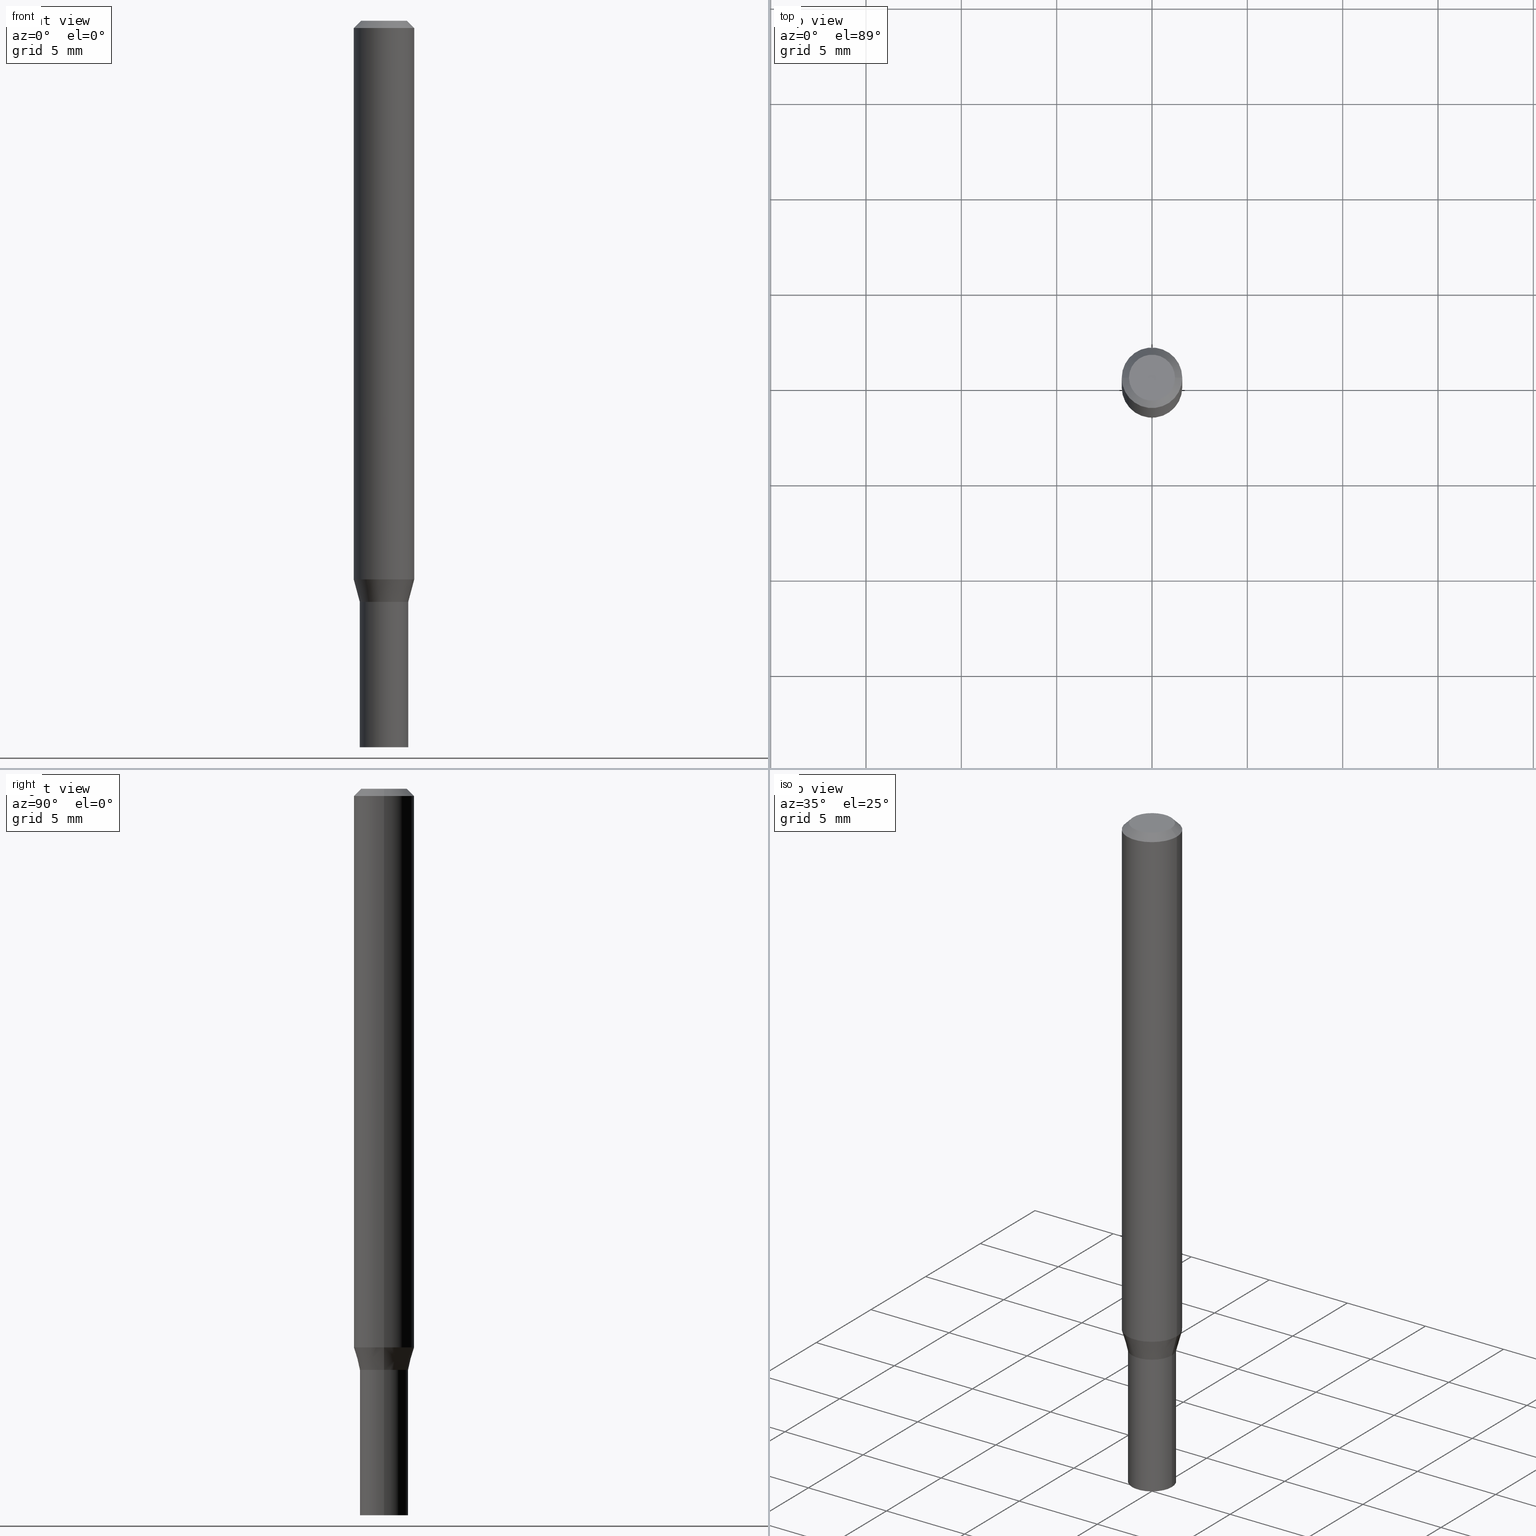
[diagram: canonical four-view strip — front | top / right | iso, engineering-drawing reading convention]
A machine part, canonical four-view strip (front | top / right | iso — engineering-drawing reading convention). The complete STEP part file that produces these views, byte-faithful:
ISO-10303-21;
HEADER;
FILE_DESCRIPTION (( 'STEP AP203' ),
    '1' );
FILE_NAME ('04177.STEP',
    '2024-03-14T17:12:17',
    ( '' ),
    ( '' ),
    'SwSTEP 2.0',
    'SolidWorks 2023',
    '' );
FILE_SCHEMA (( 'CONFIG_CONTROL_DESIGN' ));
ENDSEC;

DATA;
#1 = EDGE_LOOP ( 'NONE', ( #42, #427 ) ) ;
#2 = CIRCLE ( 'NONE', #265, 0.05000000000000000278 ) ;
#3 = CARTESIAN_POINT ( 'NONE',  ( 2.934562567422164701E-29, -4.189777606611775804E-15, -1.200000000000000178 ) ) ;
#4 = EDGE_CURVE ( 'NONE', #289, #35, #378, .T. ) ;
#5 = MECHANICAL_CONTEXT ( 'NONE', #403, 'mechanical' ) ;
#6 = VERTEX_POINT ( 'NONE', #192 ) ;
#7 = DIRECTION ( 'NONE',  ( -2.445468806185136597E-29, 3.491481338843145583E-15, 1.000000000000000000 ) ) ;
#8 = VECTOR ( 'NONE', #232, 39.37007874015748143 ) ;
#9 = DIRECTION ( 'NONE',  ( 1.000000000000000000, -6.982962677686267499E-15, 4.884662768193073002E-29 ) ) ;
#10 = EDGE_CURVE ( 'NONE', #257, #291, #134, .T. ) ;
#11 = DIRECTION ( 'NONE',  ( -2.445468806185136877E-29, 3.491481338843145188E-15, 1.000000000000000000 ) ) ;
#12 = CC_DESIGN_DATE_AND_TIME_ASSIGNMENT ( #227, #363, ( #154 ) ) ;
#13 = DIRECTION ( 'NONE',  ( 1.000000000000000000, -6.982962677686264344E-15, 0.000000000000000000 ) ) ;
#14 = CIRCLE ( 'NONE', #236, 0.06250000000000000000 ) ;
#15 = CARTESIAN_POINT ( 'NONE',  ( 0.04749999999999999362, -4.035134999187576651E-16, 8.618106228654135916E-17 ) ) ;
#16 = PRODUCT_RELATED_PRODUCT_CATEGORY ( 'detail', '', ( #225 ) ) ;
#17 = LINE ( 'NONE', #83, #365 ) ;
#18 = ORIENTED_EDGE ( 'NONE', *, *, #80, .T. ) ;
#19 = CARTESIAN_POINT ( 'NONE',  ( 0.05000000000000000278, -4.538925740496089139E-15, -1.200000000000000178 ) ) ;
#20 = EDGE_LOOP ( 'NONE', ( #23, #228, #280, #193 ) ) ;
#21 = CIRCLE ( 'NONE', #84, 0.05000000000000006523 ) ;
#22 = LINE ( 'NONE', #92, #461 ) ;
#23 = ORIENTED_EDGE ( 'NONE', *, *, #117, .F. ) ;
#24 = DIRECTION ( 'NONE',  ( 1.000000000000000000, -6.982962677686267499E-15, 4.876176775795936353E-29 ) ) ;
#25 = PERSON_AND_ORGANIZATION_ROLE ( 'classification_officer' ) ;
#26 = APPROVAL_PERSON_ORGANIZATION ( #428, #77, #316 ) ;
#27 = DIRECTION ( 'NONE',  ( -1.000000000000000000, 6.982962677686266711E-15, 0.000000000000000000 ) ) ;
#28 = ORIENTED_EDGE ( 'NONE', *, *, #312, .T. ) ;
#29 = CARTESIAN_POINT ( 'NONE',  ( 2.934562567422164701E-29, -4.189777606611775804E-15, -1.200000000000000178 ) ) ;
#30 = AXIS2_PLACEMENT_3D ( 'NONE', #240, #124, #43 ) ;
#31 = ORIENTED_EDGE ( 'NONE', *, *, #361, .F. ) ;
#32 = CYLINDRICAL_SURFACE ( 'NONE', #250, 0.06250000000000000000 ) ;
#33 = PERSON_AND_ORGANIZATION_ROLE ( 'design_owner' ) ;
#34 = DIRECTION ( 'NONE',  ( -2.445468806185136877E-29, 3.491481338843145188E-15, 1.000000000000000000 ) ) ;
#35 = VERTEX_POINT ( 'NONE', #153 ) ;
#36 = AXIS2_PLACEMENT_3D ( 'NONE', #277, #205, #237 ) ;
#37 = EDGE_CURVE ( 'NONE', #423, #104, #189, .T. ) ;
#38 = PERSON_AND_ORGANIZATION_ROLE ( 'creator' ) ;
#39 = ORIENTED_EDGE ( 'NONE', *, *, #93, .T. ) ;
#40 = ORIENTED_EDGE ( 'NONE', *, *, #312, .F. ) ;
#41 = MANIFOLD_SOLID_BREP ( 'Body-Move/Copy2[2]', #60 ) ;
#42 = ORIENTED_EDGE ( 'NONE', *, *, #169, .F. ) ;
#43 = DIRECTION ( 'NONE',  ( 1.000000000000000000, -6.982962677686265922E-15, 4.876176775795935793E-29 ) ) ;
#44 = AXIS2_PLACEMENT_3D ( 'NONE', #270, #408, #306 ) ;
#45 = ORIENTED_EDGE ( 'NONE', *, *, #303, .T. ) ;
#46 = DIRECTION ( 'NONE',  ( -2.445468806185136597E-29, 3.491481338843145583E-15, 1.000000000000000000 ) ) ;
#47 = EDGE_CURVE ( 'NONE', #311, #104, #431, .T. ) ;
#48 = CARTESIAN_POINT ( 'NONE',  ( 2.934562567422164701E-29, -4.189777606611775804E-15, -1.200000000000000178 ) ) ;
#49 = LOCAL_TIME ( 13, 12, 17.00000000000000000, #70 ) ;
#50 = DIRECTION ( 'NONE',  ( -2.445468806185136597E-29, 3.491481338843145583E-15, 1.000000000000000000 ) ) ;
#51 = ORIENTED_EDGE ( 'NONE', *, *, #80, .F. ) ;
#52 = CC_DESIGN_PERSON_AND_ORGANIZATION_ASSIGNMENT ( #394, #358, ( #178 ) ) ;
#53 = VECTOR ( 'NONE', #391, 39.37007874015748143 ) ;
#54 = CYLINDRICAL_SURFACE ( 'NONE', #44, 0.06250000000000000000 ) ;
#55 = DIRECTION ( 'NONE',  ( 1.000000000000000000, -6.982962677686264344E-15, 0.000000000000000000 ) ) ;
#56 = EDGE_LOOP ( 'NONE', ( #180, #59, #175, #326 ) ) ;
#57 = CC_DESIGN_APPROVAL ( #77, ( #269 ) ) ;
#58 = FACE_OUTER_BOUND ( 'NONE', #106, .T. ) ;
#59 = ORIENTED_EDGE ( 'NONE', *, *, #87, .F. ) ;
#60 = CLOSED_SHELL ( 'NONE', ( #381, #144, #353, #231, #113, #186, #128, #432, #268, #344, #271, #163 ) ) ;
#61 = CIRCLE ( 'NONE', #273, 0.04950000000000000233 ) ;
#62 = DIRECTION ( 'NONE',  ( -2.445468806185136597E-29, 3.491481338843145583E-15, 1.000000000000000000 ) ) ;
#63 = CC_DESIGN_PERSON_AND_ORGANIZATION_ASSIGNMENT ( #256, #38, ( #178 ) ) ;
#64 = EDGE_LOOP ( 'NONE', ( #464, #331 ) ) ;
#65 = DIRECTION ( 'NONE',  ( -2.438088387897960049E-29, 3.491481338843145188E-15, 1.000000000000000000 ) ) ;
#66 = ORIENTED_EDGE ( 'NONE', *, *, #303, .F. ) ;
#67 = COORDINATED_UNIVERSAL_TIME_OFFSET ( 5, 0, .BEHIND. ) ;
#68 = CARTESIAN_POINT ( 'NONE',  ( 0.000000000000000000, 0.000000000000000000, 0.000000000000000000 ) ) ;
#69 = ORIENTED_EDGE ( 'NONE', *, *, #234, .F. ) ;
#70 = COORDINATED_UNIVERSAL_TIME_OFFSET ( 5, 0, .BEHIND. ) ;
#71 = CIRCLE ( 'NONE', #213, 0.04749999999999999362 ) ;
#72 = DIRECTION ( 'NONE',  ( -2.445468806185136597E-29, 3.491481338843145583E-15, 1.000000000000000000 ) ) ;
#73 = CALENDAR_DATE ( 2024, 14, 3 ) ;
#74 = CARTESIAN_POINT ( 'NONE',  ( 2.820479894509568805E-29, -4.026897784733760650E-15, -1.153349364905389640 ) ) ;
#75 = COORDINATED_UNIVERSAL_TIME_OFFSET ( 5, 0, .BEHIND. ) ;
#76 = CARTESIAN_POINT ( 'NONE',  ( -2.107530995056288845E-45, 3.008995707351289501E-31, 8.618106228653878303E-17 ) ) ;
#77 = APPROVAL ( #176, 'UNSPECIFIED' ) ;
#78 = AXIS2_PLACEMENT_3D ( 'NONE', #399, #368, #442 ) ;
#79 = DIRECTION ( 'NONE',  ( 1.000000000000000000, -6.982962677686265133E-15, 0.000000000000000000 ) ) ;
#80 = EDGE_CURVE ( 'NONE', #6, #397, #407, .T. ) ;
#81 = DIRECTION ( 'NONE',  ( -2.445468806185136597E-29, 3.491481338843145583E-15, 1.000000000000000000 ) ) ;
#82 = LOCAL_TIME ( 13, 12, 17.00000000000000000, #293 ) ;
#83 = CARTESIAN_POINT ( 'NONE',  ( -0.06250000000000000000, 3.840629472727444916E-16, -0.01499999999999999944 ) ) ;
#84 = AXIS2_PLACEMENT_3D ( 'NONE', #174, #147, #343 ) ;
#85 = CYLINDRICAL_SURFACE ( 'NONE', #182, 0.05000000000000006523 ) ;
#86 = DIRECTION ( 'NONE',  ( 2.438088387897960049E-29, -3.491481338843145188E-15, -1.000000000000000000 ) ) ;
#87 = EDGE_CURVE ( 'NONE', #6, #259, #181, .T. ) ;
#88 = PLANE ( 'NONE',  #30 ) ;
#89 = EDGE_LOOP ( 'NONE', ( #349, #210, #18, #249 ) ) ;
#90 = AXIS2_PLACEMENT_3D ( 'NONE', #307, #449, #55 ) ;
#91 = AXIS2_PLACEMENT_3D ( 'NONE', #354, #103, #251 ) ;
#92 = CARTESIAN_POINT ( 'NONE',  ( 0.06250000000000000000, -4.364351673553916694E-16, 3.047610484872459871E-30 ) ) ;
#93 = EDGE_CURVE ( 'NONE', #397, #420, #356, .T. ) ;
#94 = EDGE_CURVE ( 'NONE', #420, #216, #159, .T. ) ;
#95 = CARTESIAN_POINT ( 'NONE',  ( 0.05000000000000006523, -4.537179999826667636E-15, -1.199500000000000233 ) ) ;
#96 = ORIENTED_EDGE ( 'NONE', *, *, #150, .T. ) ;
#97 = ORIENTED_EDGE ( 'NONE', *, *, #276, .F. ) ;
#98 = DESIGN_CONTEXT ( 'detailed design', #204, 'design' ) ;
#99 = EDGE_CURVE ( 'NONE', #425, #423, #61, .T. ) ;
#100 = CARTESIAN_POINT ( 'NONE',  ( 3.668203209277705088E-31, -5.237222008264718399E-17, -0.01499999999999999944 ) ) ;
#101 = ORIENTED_EDGE ( 'NONE', *, *, #93, .F. ) ;
#102 = VECTOR ( 'NONE', #11, 39.37007874015748143 ) ;
#103 = DIRECTION ( 'NONE',  ( 2.445468806185136597E-29, -3.491481338843145583E-15, -1.000000000000000000 ) ) ;
#104 = VERTEX_POINT ( 'NONE', #118 ) ;
#105 = FACE_OUTER_BOUND ( 'NONE', #453, .T. ) ;
#106 = EDGE_LOOP ( 'NONE', ( #444, #285, #45, #31 ) ) ;
#107 = CC_DESIGN_PERSON_AND_ORGANIZATION_ASSIGNMENT ( #459, #25, ( #269 ) ) ;
#108 = CC_DESIGN_APPROVAL ( #283, ( #178 ) ) ;
#109 = CALENDAR_DATE ( 2024, 14, 3 ) ;
#110 = ORIENTED_EDGE ( 'NONE', *, *, #99, .F. ) ;
#111 = VECTOR ( 'NONE', #115, 39.37007874015748854 ) ;
#112 = DIRECTION ( 'NONE',  ( 1.000000000000000000, -6.982962677686266711E-15, 4.876176775795935793E-29 ) ) ;
#113 = ADVANCED_FACE ( 'NONE', ( #120 ), #278, .T. ) ;
#114 = COORDINATED_UNIVERSAL_TIME_OFFSET ( 5, 0, .BEHIND. ) ;
#115 = DIRECTION ( 'NONE',  ( 0.2588190451025212391, 1.565188264969622362E-15, 0.9659258262890679791 ) ) ;
#116 = PERSON_AND_ORGANIZATION ( #206, #445 ) ;
#117 = EDGE_CURVE ( 'NONE', #289, #455, #434, .T. ) ;
#118 = CARTESIAN_POINT ( 'NONE',  ( -0.05000000000000006523, -3.832760498062303103E-15, -1.199500000000000233 ) ) ;
#119 =( GEOMETRIC_REPRESENTATION_CONTEXT ( 3 ) GLOBAL_UNCERTAINTY_ASSIGNED_CONTEXT ( ( #260 ) ) GLOBAL_UNIT_ASSIGNED_CONTEXT ( ( #429, #298, #261 ) ) REPRESENTATION_CONTEXT ( 'NONE', 'WORKASPACE' ) );
#120 = FACE_OUTER_BOUND ( 'NONE', #342, .T. ) ;
#121 = AXIS2_PLACEMENT_3D ( 'NONE', #100, #384, #27 ) ;
#122 = ORIENTED_EDGE ( 'NONE', *, *, #276, .T. ) ;
#123 = EDGE_CURVE ( 'NONE', #253, #216, #327, .T. ) ;
#124 = DIRECTION ( 'NONE',  ( -2.438088387897960049E-29, 3.491481338843145188E-15, 1.000000000000000000 ) ) ;
#125 = ORIENTED_EDGE ( 'NONE', *, *, #220, .F. ) ;
#126 = ADVANCED_BREP_SHAPE_REPRESENTATION ( '04177', ( #207, #41, #217 ), #119 ) ;
#127 = LINE ( 'NONE', #238, #422 ) ;
#128 = ADVANCED_FACE ( 'NONE', ( #267 ), #32, .T. ) ;
#129 = PLANE ( 'NONE',  #387 ) ;
#130 = DIRECTION ( 'NONE',  ( 1.000000000000000000, -6.982962677686266711E-15, 4.876176775795935232E-29 ) ) ;
#131 = LOCAL_TIME ( 13, 12, 17.00000000000000000, #67 ) ;
#132 = FACE_OUTER_BOUND ( 'NONE', #184, .T. ) ;
#133 = EDGE_CURVE ( 'NONE', #420, #397, #440, .T. ) ;
#134 = CIRCLE ( 'NONE', #196, 0.04749999999999999362 ) ;
#135 = VECTOR ( 'NONE', #305, 39.37007874015748854 ) ;
#136 = CARTESIAN_POINT ( 'NONE',  ( 2.934562567422164701E-29, -4.189777606611775804E-15, -1.200000000000000178 ) ) ;
#137 = ORIENTED_EDGE ( 'NONE', *, *, #10, .F. ) ;
#138 = CYLINDRICAL_SURFACE ( 'NONE', #301, 0.05000000000000000278 ) ;
#139 = ORIENTED_EDGE ( 'NONE', *, *, #37, .F. ) ;
#140 = CARTESIAN_POINT ( 'NONE',  ( -0.04749999999999999362, 3.578768372314211985E-16, 8.618106228653636715E-17 ) ) ;
#141 = ORIENTED_EDGE ( 'NONE', *, *, #94, .F. ) ;
#142 = APPROVAL_DATE_TIME ( #212, #77 ) ;
#143 = DIRECTION ( 'NONE',  ( 2.438088387897960049E-29, -3.491481338843145188E-15, -1.000000000000000000 ) ) ;
#144 = ADVANCED_FACE ( 'NONE', ( #272 ), #451, .T. ) ;
#145 = ORIENTED_EDGE ( 'NONE', *, *, #169, .T. ) ;
#146 = SHAPE_DEFINITION_REPRESENTATION ( #199, #126 ) ;
#147 = DIRECTION ( 'NONE',  ( -2.445468806185136597E-29, 3.491481338843145583E-15, 1.000000000000000000 ) ) ;
#148 = ORIENTED_EDGE ( 'NONE', *, *, #150, .F. ) ;
#149 = DIRECTION ( 'NONE',  ( -2.445468806185136597E-29, 3.491481338843145583E-15, 1.000000000000000000 ) ) ;
#150 = EDGE_CURVE ( 'NONE', #423, #425, #414, .T. ) ;
#151 = APPROVAL_ROLE ( '' ) ;
#152 = CIRCLE ( 'NONE', #165, 0.05000000000000000278 ) ;
#153 = CARTESIAN_POINT ( 'NONE',  ( 0.05000000000000000278, -5.586370142149032301E-15, -1.500000000000000222 ) ) ;
#154 = PRODUCT_DEFINITION ( 'UNKNOWN', '', #178, #98 ) ;
#155 = CARTESIAN_POINT ( 'NONE',  ( 0.000000000000000000, 0.000000000000000000, 0.000000000000000000 ) ) ;
#156 = CARTESIAN_POINT ( 'NONE',  ( 2.934562567422164701E-29, -4.189777606611775804E-15, -1.200000000000000178 ) ) ;
#157 = DATE_AND_TIME ( #433, #49 ) ;
#158 = CARTESIAN_POINT ( 'NONE',  ( -0.04950000000000000233, -3.838058952410526294E-15, -1.200000000000000178 ) ) ;
#159 = LINE ( 'NONE', #299, #160 ) ;
#160 = VECTOR ( 'NONE', #34, 39.37007874015748143 ) ;
#161 = DIRECTION ( 'NONE',  ( -2.445468806185136597E-29, 3.491481338843145583E-15, 1.000000000000000000 ) ) ;
#162 = CARTESIAN_POINT ( 'NONE',  ( -2.107530995056288845E-45, 3.008995707351289501E-31, 8.618106228653878303E-17 ) ) ;
#163 = ADVANCED_FACE ( 'NONE', ( #197 ), #85, .F. ) ;
#164 = LINE ( 'NONE', #371, #135 ) ;
#165 = AXIS2_PLACEMENT_3D ( 'NONE', #411, #81, #336 ) ;
#166 = EDGE_CURVE ( 'NONE', #291, #257, #71, .T. ) ;
#167 = FACE_OUTER_BOUND ( 'NONE', #328, .T. ) ;
#168 = DIRECTION ( 'NONE',  ( -2.445468806185136877E-29, 3.491481338843145188E-15, 1.000000000000000000 ) ) ;
#169 = EDGE_CURVE ( 'NONE', #35, #289, #152, .T. ) ;
#170 = DIRECTION ( 'NONE',  ( 1.000000000000000000, -6.982962677686266711E-15, 0.000000000000000000 ) ) ;
#171 = CC_DESIGN_PERSON_AND_ORGANIZATION_ASSIGNMENT ( #435, #398, ( #154 ) ) ;
#172 = EDGE_LOOP ( 'NONE', ( #110, #148 ) ) ;
#173 = AXIS2_PLACEMENT_3D ( 'NONE', #48, #46, #202 ) ;
#174 = CARTESIAN_POINT ( 'NONE',  ( 2.933339833019071899E-29, -4.188031865942353511E-15, -1.199500000000000233 ) ) ;
#175 = ORIENTED_EDGE ( 'NONE', *, *, #361, .T. ) ;
#176 = APPROVAL_STATUS ( 'not_yet_approved' ) ;
#177 = CARTESIAN_POINT ( 'NONE',  ( 0.06250000000000000000, -4.463332952089153109E-15, -1.153349364905389640 ) ) ;
#178 = PRODUCT_DEFINITION_FORMATION_WITH_SPECIFIED_SOURCE ( 'ANY', '', #225, .NOT_KNOWN. ) ;
#179 = LINE ( 'NONE', #463, #53 ) ;
#180 = ORIENTED_EDGE ( 'NONE', *, *, #248, .F. ) ;
#181 = CIRCLE ( 'NONE', #287, 0.05000000000000006523 ) ;
#182 = AXIS2_PLACEMENT_3D ( 'NONE', #235, #50, #130 ) ;
#183 = CARTESIAN_POINT ( 'NONE',  ( 0.04950000000000000233, -4.535434259157245343E-15, -1.200000000000000178 ) ) ;
#184 = EDGE_LOOP ( 'NONE', ( #39, #458, #246, #40 ) ) ;
#185 = PERSON_AND_ORGANIZATION ( #206, #445 ) ;
#186 = ADVANCED_FACE ( 'NONE', ( #374 ), #404, .T. ) ;
#187 = CARTESIAN_POINT ( 'NONE',  ( 0.000000000000000000, 0.000000000000000000, 0.000000000000000000 ) ) ;
#188 = LENGTH_MEASURE_WITH_UNIT ( LENGTH_MEASURE( 0.02539999999999999897 ), #258 );
#189 = LINE ( 'NONE', #158, #410 ) ;
#190 = EDGE_CURVE ( 'NONE', #259, #420, #164, .T. ) ;
#191 = CONICAL_SURFACE ( 'NONE', #90, 0.04950000000000000233, 0.7853981633974739252 ) ;
#192 = CARTESIAN_POINT ( 'NONE',  ( 0.05000000000000006523, -4.538925740496089139E-15, -1.200000000000000178 ) ) ;
#193 = ORIENTED_EDGE ( 'NONE', *, *, #332, .F. ) ;
#194 = ADVANCED_FACE ( 'NONE', ( #373 ), #88, .F. ) ;
#195 = DIRECTION ( 'NONE',  ( -2.445468806185136597E-29, 3.491481338843145583E-15, 1.000000000000000000 ) ) ;
#196 = AXIS2_PLACEMENT_3D ( 'NONE', #76, #7, #226 ) ;
#197 = FACE_OUTER_BOUND ( 'NONE', #56, .T. ) ;
#198 = AXIS2_PLACEMENT_3D ( 'NONE', #29, #452, #419 ) ;
#199 = PRODUCT_DEFINITION_SHAPE ( 'NONE', 'NONE',  #154 ) ;
#200 = DIRECTION ( 'NONE',  ( -0.7071067811865454633, 2.468850131082235761E-15, -0.7071067811865493491 ) ) ;
#201 = CARTESIAN_POINT ( 'NONE',  ( 0.06250000000000000000, -4.888073874380388472E-16, -0.01499999999999999944 ) ) ;
#202 = DIRECTION ( 'NONE',  ( 1.000000000000000000, -6.982962677686274599E-15, 0.000000000000000000 ) ) ;
#203 = AXIS2_PLACEMENT_3D ( 'NONE', #296, #195, #297 ) ;
#204 = APPLICATION_CONTEXT ( 'configuration controlled 3d designs of mechanical parts and assemblies' ) ;
#205 = DIRECTION ( 'NONE',  ( -2.445468806185136597E-29, 3.491481338843145583E-15, 1.000000000000000000 ) ) ;
#206 = PERSON ( 'UNSPECIFIED', 'UNSPECIFIED', 'UNSPECIFIED', ('UNSPECIFIED'), ('UNSPECIFIED'), ('UNSPECIFIED') ) ;
#207 = MANIFOLD_SOLID_BREP ( 'Body-Move/Copy2[1]', #319 ) ;
#208 = EDGE_CURVE ( 'NONE', #388, #455, #334, .T. ) ;
#209 = CYLINDRICAL_SURFACE ( 'NONE', #416, 0.05000000000000006523 ) ;
#210 = ORIENTED_EDGE ( 'NONE', *, *, #329, .T. ) ;
#211 = DIRECTION ( 'NONE',  ( -2.445468806185136597E-29, 3.491481338843145583E-15, 1.000000000000000000 ) ) ;
#212 = DATE_AND_TIME ( #456, #131 ) ;
#213 = AXIS2_PLACEMENT_3D ( 'NONE', #162, #413, #9 ) ;
#214 = CARTESIAN_POINT ( 'NONE',  ( 0.000000000000000000, 0.000000000000000000, 0.000000000000000000 ) ) ;
#215 = PLANE ( 'NONE',  #339 ) ;
#216 = VERTEX_POINT ( 'NONE', #337 ) ;
#217 = AXIS2_PLACEMENT_3D ( 'NONE', #155, #426, #330 ) ;
#218 = CARTESIAN_POINT ( 'NONE',  ( 3.491481338843426713E-16, 0.04999999999999581168, -1.200000000000000400 ) ) ;
#219 = ORIENTED_EDGE ( 'NONE', *, *, #99, .T. ) ;
#220 = EDGE_CURVE ( 'NONE', #35, #388, #379, .T. ) ;
#221 = AXIS2_PLACEMENT_3D ( 'NONE', #214, #211, #309 ) ;
#222 = APPLICATION_PROTOCOL_DEFINITION ( 'international standard', 'config_control_design', 1994, #204 ) ;
#223 = DIRECTION ( 'NONE',  ( -0.7071067811865656694, 7.493145998870420424E-15, 0.7071067811865294761 ) ) ;
#224 = PERSON_AND_ORGANIZATION ( #206, #445 ) ;
#225 = PRODUCT ( '04177', '04177', '', ( #5 ) ) ;
#226 = DIRECTION ( 'NONE',  ( 1.000000000000000000, -6.982962677686267499E-15, 4.884662768193073002E-29 ) ) ;
#227 = DATE_AND_TIME ( #73, #385 ) ;
#228 = ORIENTED_EDGE ( 'NONE', *, *, #4, .T. ) ;
#229 = DATE_AND_TIME ( #109, #239 ) ;
#230 = DIRECTION ( 'NONE',  ( 1.000000000000000000, -6.982962677686275388E-15, 0.000000000000000000 ) ) ;
#231 = ADVANCED_FACE ( 'NONE', ( #132 ), #54, .T. ) ;
#232 = DIRECTION ( 'NONE',  ( -2.445468806185136877E-29, 3.491481338843145188E-15, 1.000000000000000000 ) ) ;
#233 = DIRECTION ( 'NONE',  ( -2.445468806185136597E-29, 3.491481338843145583E-15, 1.000000000000000000 ) ) ;
#234 = EDGE_CURVE ( 'NONE', #291, #216, #17, .T. ) ;
#235 = CARTESIAN_POINT ( 'NONE',  ( 0.000000000000000000, 0.000000000000000000, 0.000000000000000000 ) ) ;
#236 = AXIS2_PLACEMENT_3D ( 'NONE', #281, #417, #170 ) ;
#237 = DIRECTION ( 'NONE',  ( 1.000000000000000000, -6.982962677686264344E-15, 0.000000000000000000 ) ) ;
#238 = CARTESIAN_POINT ( 'NONE',  ( 0.06250000000000000000, -4.811533449433679005E-16, -0.01499999999999999944 ) ) ;
#239 = LOCAL_TIME ( 13, 12, 17.00000000000000000, #75 ) ;
#240 = CARTESIAN_POINT ( 'NONE',  ( 3.576687321579069994E-29, -5.368277968210015545E-15, -1.500000000000000222 ) ) ;
#241 = AXIS2_PLACEMENT_3D ( 'NONE', #405, #149, #264 ) ;
#242 = ORIENTED_EDGE ( 'NONE', *, *, #234, .T. ) ;
#243 = CONICAL_SURFACE ( 'NONE', #91, 0.06250000000000000000, 0.7853981633974456145 ) ;
#244 = DIRECTION ( 'NONE',  ( -2.445468806185136597E-29, 3.491481338843145583E-15, 1.000000000000000000 ) ) ;
#245 = DIRECTION ( 'NONE',  ( -2.445468806185136877E-29, 3.491481338843145188E-15, 1.000000000000000000 ) ) ;
#246 = ORIENTED_EDGE ( 'NONE', *, *, #123, .F. ) ;
#247 = DIRECTION ( 'NONE',  ( 1.000000000000000000, -6.982962677686274599E-15, 0.000000000000000000 ) ) ;
#248 = EDGE_CURVE ( 'NONE', #259, #104, #446, .T. ) ;
#249 = ORIENTED_EDGE ( 'NONE', *, *, #133, .F. ) ;
#250 = AXIS2_PLACEMENT_3D ( 'NONE', #187, #466, #112 ) ;
#251 = DIRECTION ( 'NONE',  ( -1.000000000000000000, 6.982962677686266711E-15, 0.000000000000000000 ) ) ;
#252 = EDGE_CURVE ( 'NONE', #257, #253, #127, .T. ) ;
#253 = VERTEX_POINT ( 'NONE', #201 ) ;
#254 = DIRECTION ( 'NONE',  ( 1.000000000000000000, -6.982962677686265922E-15, 4.876176775795935793E-29 ) ) ;
#255 = ORIENTED_EDGE ( 'NONE', *, *, #87, .T. ) ;
#256 = PERSON_AND_ORGANIZATION ( #206, #445 ) ;
#257 = VERTEX_POINT ( 'NONE', #15 ) ;
#258 =( LENGTH_UNIT ( ) NAMED_UNIT ( * ) SI_UNIT ( $, .METRE. ) );
#259 = VERTEX_POINT ( 'NONE', #448 ) ;
#260 = UNCERTAINTY_MEASURE_WITH_UNIT (LENGTH_MEASURE( 1.000000000000000082E-05 ), #429, 'distance_accuracy_value', 'NONE');
#261 =( NAMED_UNIT ( * ) SI_UNIT ( $, .STERADIAN. ) SOLID_ANGLE_UNIT ( ) );
#262 = CARTESIAN_POINT ( 'NONE',  ( -0.05000000000000000278, 3.552713678800501127E-16, -2.459467545127453311E-30 ) ) ;
#263 = DIMENSIONAL_EXPONENTS ( 1.000000000000000000, 0.000000000000000000, 0.000000000000000000, 0.000000000000000000, 0.000000000000000000, 0.000000000000000000, 0.000000000000000000 ) ;
#264 = DIRECTION ( 'NONE',  ( 1.000000000000000000, -6.982962677686274599E-15, 0.000000000000000000 ) ) ;
#265 = AXIS2_PLACEMENT_3D ( 'NONE', #136, #244, #247 ) ;
#266 = ORIENTED_EDGE ( 'NONE', *, *, #123, .T. ) ;
#267 = FACE_OUTER_BOUND ( 'NONE', #323, .T. ) ;
#268 = ADVANCED_FACE ( 'NONE', ( #274 ), #129, .F. ) ;
#269 = SECURITY_CLASSIFICATION ( '', '', #350 ) ;
#270 = CARTESIAN_POINT ( 'NONE',  ( 0.000000000000000000, 0.000000000000000000, 0.000000000000000000 ) ) ;
#271 = ADVANCED_FACE ( 'NONE', ( #167 ), #191, .T. ) ;
#272 = FACE_OUTER_BOUND ( 'NONE', #355, .T. ) ;
#273 = AXIS2_PLACEMENT_3D ( 'NONE', #156, #302, #364 ) ;
#274 = FACE_OUTER_BOUND ( 'NONE', #64, .T. ) ;
#275 = CARTESIAN_POINT ( 'NONE',  ( 2.934562567422164701E-29, -4.189777606611775804E-15, -1.200000000000000178 ) ) ;
#276 = EDGE_CURVE ( 'NONE', #216, #253, #14, .T. ) ;
#277 = CARTESIAN_POINT ( 'NONE',  ( 2.934562567422164701E-29, -4.189777606611775804E-15, -1.200000000000000178 ) ) ;
#278 = CONICAL_SURFACE ( 'NONE', #310, 0.05000000000000006523, 0.2617993877991499629 ) ;
#279 = DIRECTION ( 'NONE',  ( -2.445468806185136597E-29, 3.491481338843145583E-15, 1.000000000000000000 ) ) ;
#280 = ORIENTED_EDGE ( 'NONE', *, *, #220, .T. ) ;
#281 = CARTESIAN_POINT ( 'NONE',  ( 3.668203209277705088E-31, -5.237222008264718399E-17, -0.01499999999999999944 ) ) ;
#282 = ORIENTED_EDGE ( 'NONE', *, *, #166, .F. ) ;
#283 = APPROVAL ( #401, 'UNSPECIFIED' ) ;
#284 = CARTESIAN_POINT ( 'NONE',  ( -0.04950000000000000233, -3.835409725236414304E-15, -1.200000000000000178 ) ) ;
#285 = ORIENTED_EDGE ( 'NONE', *, *, #248, .T. ) ;
#286 = DATE_AND_TIME ( #393, #82 ) ;
#287 = AXIS2_PLACEMENT_3D ( 'NONE', #3, #438, #79 ) ;
#288 = DIRECTION ( 'NONE',  ( -1.000000000000000000, 6.982962677686265922E-15, -4.876176775795935793E-29 ) ) ;
#289 = VERTEX_POINT ( 'NONE', #386 ) ;
#290 = APPROVAL_ROLE ( '' ) ;
#291 = VERTEX_POINT ( 'NONE', #140 ) ;
#292 = EDGE_CURVE ( 'NONE', #425, #311, #348, .T. ) ;
#293 = COORDINATED_UNIVERSAL_TIME_OFFSET ( 5, 0, .BEHIND. ) ;
#294 = CARTESIAN_POINT ( 'NONE',  ( 2.934562567422164701E-29, -4.189777606611775804E-15, -1.200000000000000178 ) ) ;
#295 = APPROVAL_DATE_TIME ( #157, #370 ) ;
#296 = CARTESIAN_POINT ( 'NONE',  ( 2.820479894509568805E-29, -4.026897784733760650E-15, -1.153349364905389640 ) ) ;
#297 = DIRECTION ( 'NONE',  ( 1.000000000000000000, -6.982962677686270655E-15, 0.000000000000000000 ) ) ;
#298 =( NAMED_UNIT ( * ) PLANE_ANGLE_UNIT ( ) SI_UNIT ( $, .RADIAN. ) );
#299 = CARTESIAN_POINT ( 'NONE',  ( -0.06250000000000000000, 4.440892098500626162E-16, -3.074334431409316114E-30 ) ) ;
#300 = VECTOR ( 'NONE', #168, 39.37007874015748143 ) ;
#301 = AXIS2_PLACEMENT_3D ( 'NONE', #321, #279, #24 ) ;
#302 = DIRECTION ( 'NONE',  ( -2.445468806185136597E-29, 3.491481338843145583E-15, 1.000000000000000000 ) ) ;
#303 = EDGE_CURVE ( 'NONE', #104, #311, #21, .T. ) ;
#304 = DIRECTION ( 'NONE',  ( -2.445468806185136597E-29, 3.491481338843145583E-15, 1.000000000000000000 ) ) ;
#305 = DIRECTION ( 'NONE',  ( -0.2588190451025212391, 5.211531920934549464E-15, 0.9659258262890679791 ) ) ;
#306 = DIRECTION ( 'NONE',  ( 1.000000000000000000, -6.982962677686266711E-15, 4.876176775795935793E-29 ) ) ;
#307 = CARTESIAN_POINT ( 'NONE',  ( 2.934562567422164701E-29, -4.189777606611775804E-15, -1.200000000000000178 ) ) ;
#308 = DIRECTION ( 'NONE',  ( 0.7071067811865454633, -7.319954787623246579E-15, -0.7071067811865493491 ) ) ;
#309 = DIRECTION ( 'NONE',  ( 1.000000000000000000, -6.982962677686267499E-15, 4.876176775795936353E-29 ) ) ;
#310 = AXIS2_PLACEMENT_3D ( 'NONE', #294, #436, #402 ) ;
#311 = VERTEX_POINT ( 'NONE', #95 ) ;
#312 = EDGE_CURVE ( 'NONE', #397, #253, #22, .T. ) ;
#313 = FACE_OUTER_BOUND ( 'NONE', #362, .T. ) ;
#314 = ORIENTED_EDGE ( 'NONE', *, *, #332, .T. ) ;
#315 = CARTESIAN_POINT ( 'NONE',  ( -0.06250000000000000000, -3.582808574883698823E-15, -1.153349364905389640 ) ) ;
#316 = APPROVAL_ROLE ( '' ) ;
#317 = FACE_OUTER_BOUND ( 'NONE', #390, .T. ) ;
#318 = ORIENTED_EDGE ( 'NONE', *, *, #37, .T. ) ;
#319 = CLOSED_SHELL ( 'NONE', ( #382, #194, #396, #439 ) ) ;
#320 = CONICAL_SURFACE ( 'NONE', #121, 0.06250000000000000000, 0.7853981633974456145 ) ;
#321 = CARTESIAN_POINT ( 'NONE',  ( 0.000000000000000000, 0.000000000000000000, 0.000000000000000000 ) ) ;
#322 = CC_DESIGN_DATE_AND_TIME_ASSIGNMENT ( #286, #347, ( #269 ) ) ;
#323 = EDGE_LOOP ( 'NONE', ( #141, #333, #28, #97 ) ) ;
#324 = CARTESIAN_POINT ( 'NONE',  ( 2.933339833019071899E-29, -4.188031865942353511E-15, -1.199500000000000233 ) ) ;
#325 = CC_DESIGN_SECURITY_CLASSIFICATION ( #269, ( #178 ) ) ;
#326 = ORIENTED_EDGE ( 'NONE', *, *, #47, .T. ) ;
#327 = CIRCLE ( 'NONE', #78, 0.06250000000000000000 ) ;
#328 = EDGE_LOOP ( 'NONE', ( #139, #96, #377, #66 ) ) ;
#329 = EDGE_CURVE ( 'NONE', #259, #6, #345, .T. ) ;
#330 = DIRECTION ( 'NONE',  ( 1.000000000000000000, 0.000000000000000000, 0.000000000000000000 ) ) ;
#331 = ORIENTED_EDGE ( 'NONE', *, *, #10, .T. ) ;
#332 = EDGE_CURVE ( 'NONE', #455, #388, #2, .T. ) ;
#333 = ORIENTED_EDGE ( 'NONE', *, *, #133, .T. ) ;
#334 = CIRCLE ( 'NONE', #173, 0.05000000000000000278 ) ;
#335 = DIRECTION ( 'NONE',  ( 1.000000000000000000, -6.982962677686270655E-15, 0.000000000000000000 ) ) ;
#336 = DIRECTION ( 'NONE',  ( 1.000000000000000000, -6.982962677686274599E-15, 0.000000000000000000 ) ) ;
#337 = CARTESIAN_POINT ( 'NONE',  ( -0.06250000000000000000, -1.595545792558141446E-15, -0.01499999999999999944 ) ) ;
#338 = CARTESIAN_POINT ( 'NONE',  ( 0.05000000000000000278, -3.491481338843133848E-16, 2.438088387897968247E-30 ) ) ;
#339 = AXIS2_PLACEMENT_3D ( 'NONE', #351, #65, #254 ) ;
#340 = CARTESIAN_POINT ( 'NONE',  ( -0.05000000000000006523, 3.552713678800505564E-16, -2.459467545127455764E-30 ) ) ;
#341 = DIRECTION ( 'NONE',  ( 1.000000000000000000, -6.982962677686266711E-15, 4.876176775795935232E-29 ) ) ;
#342 = EDGE_LOOP ( 'NONE', ( #255, #418, #101, #51 ) ) ;
#343 = DIRECTION ( 'NONE',  ( 1.000000000000000000, -6.982962677686275388E-15, 0.000000000000000000 ) ) ;
#344 = ADVANCED_FACE ( 'NONE', ( #383 ), #215, .F. ) ;
#345 = CIRCLE ( 'NONE', #198, 0.05000000000000006523 ) ;
#346 = ORIENTED_EDGE ( 'NONE', *, *, #208, .F. ) ;
#347 = DATE_TIME_ROLE ( 'classification_date' ) ;
#348 = LINE ( 'NONE', #183, #380 ) ;
#349 = ORIENTED_EDGE ( 'NONE', *, *, #190, .F. ) ;
#350 = SECURITY_CLASSIFICATION_LEVEL ( 'unclassified' ) ;
#351 = CARTESIAN_POINT ( 'NONE',  ( 2.934562567422164701E-29, -4.189777606611775804E-15, -1.200000000000000178 ) ) ;
#352 = ORIENTED_EDGE ( 'NONE', *, *, #292, .F. ) ;
#353 = ADVANCED_FACE ( 'NONE', ( #105 ), #320, .T. ) ;
#354 = CARTESIAN_POINT ( 'NONE',  ( 3.668203209277705088E-31, -5.237222008264718399E-17, -0.01499999999999999944 ) ) ;
#355 = EDGE_LOOP ( 'NONE', ( #219, #318, #462, #352 ) ) ;
#356 = CIRCLE ( 'NONE', #203, 0.06250000000000000000 ) ;
#357 = AXIS2_PLACEMENT_3D ( 'NONE', #218, #143, #288 ) ;
#358 = PERSON_AND_ORGANIZATION_ROLE ( 'design_supplier' ) ;
#359 = CARTESIAN_POINT ( 'NONE',  ( 0.05000000000000006523, -4.538925740496089139E-15, -1.200000000000000178 ) ) ;
#360 = APPROVAL_STATUS ( 'not_yet_approved' ) ;
#361 = EDGE_CURVE ( 'NONE', #6, #311, #179, .T. ) ;
#362 = EDGE_LOOP ( 'NONE', ( #145, #367, #346, #125 ) ) ;
#363 = DATE_TIME_ROLE ( 'creation_date' ) ;
#364 = DIRECTION ( 'NONE',  ( 1.000000000000000000, -6.982962677686264344E-15, 0.000000000000000000 ) ) ;
#365 = VECTOR ( 'NONE', #200, 39.37007874015748854 ) ;
#366 = APPROVAL_DATE_TIME ( #229, #283 ) ;
#367 = ORIENTED_EDGE ( 'NONE', *, *, #117, .T. ) ;
#368 = DIRECTION ( 'NONE',  ( -2.445468806185136597E-29, 3.491481338843145583E-15, 1.000000000000000000 ) ) ;
#369 = ORIENTED_EDGE ( 'NONE', *, *, #252, .F. ) ;
#370 = APPROVAL ( #360, 'UNSPECIFIED' ) ;
#371 = CARTESIAN_POINT ( 'NONE',  ( -0.05000000000000006523, -3.834506238731724606E-15, -1.200000000000000178 ) ) ;
#372 = AXIS2_PLACEMENT_3D ( 'NONE', #275, #304, #13 ) ;
#373 = FACE_OUTER_BOUND ( 'NONE', #1, .T. ) ;
#374 = FACE_OUTER_BOUND ( 'NONE', #89, .T. ) ;
#375 = CC_DESIGN_APPROVAL ( #370, ( #154 ) ) ;
#376 = DIRECTION ( 'NONE',  ( -1.000000000000000000, 6.982962677686265922E-15, -4.876176775795935793E-29 ) ) ;
#377 = ORIENTED_EDGE ( 'NONE', *, *, #292, .T. ) ;
#378 = CIRCLE ( 'NONE', #241, 0.05000000000000000278 ) ;
#379 = LINE ( 'NONE', #338, #102 ) ;
#380 = VECTOR ( 'NONE', #415, 39.37007874015748143 ) ;
#381 = ADVANCED_FACE ( 'NONE', ( #58 ), #209, .F. ) ;
#382 = ADVANCED_FACE ( 'NONE', ( #313 ), #457, .T. ) ;
#383 = FACE_OUTER_BOUND ( 'NONE', #172, .T. ) ;
#384 = DIRECTION ( 'NONE',  ( 2.445468806185136597E-29, -3.491481338843145583E-15, -1.000000000000000000 ) ) ;
#385 = LOCAL_TIME ( 13, 12, 17.00000000000000000, #114 ) ;
#386 = CARTESIAN_POINT ( 'NONE',  ( -0.05000000000000000278, -4.358228439558196976E-15, -1.500000000000000222 ) ) ;
#387 = AXIS2_PLACEMENT_3D ( 'NONE', #412, #86, #376 ) ;
#388 = VERTEX_POINT ( 'NONE', #19 ) ;
#389 = FACE_OUTER_BOUND ( 'NONE', #409, .T. ) ;
#390 = EDGE_LOOP ( 'NONE', ( #369, #282, #242, #122 ) ) ;
#391 = DIRECTION ( 'NONE',  ( -2.445468806185136877E-29, 3.491481338843145188E-15, 1.000000000000000000 ) ) ;
#392 = ORIENTED_EDGE ( 'NONE', *, *, #252, .T. ) ;
#393 = CALENDAR_DATE ( 2024, 14, 3 ) ;
#394 = PERSON_AND_ORGANIZATION ( #206, #445 ) ;
#395 = AXIS2_PLACEMENT_3D ( 'NONE', #74, #161, #335 ) ;
#396 = ADVANCED_FACE ( 'NONE', ( #454 ), #138, .T. ) ;
#397 = VERTEX_POINT ( 'NONE', #177 ) ;
#398 = PERSON_AND_ORGANIZATION_ROLE ( 'creator' ) ;
#399 = CARTESIAN_POINT ( 'NONE',  ( 3.668203209277705088E-31, -5.237222008264718399E-17, -0.01499999999999999944 ) ) ;
#400 = APPROVAL_PERSON_ORGANIZATION ( #185, #370, #151 ) ;
#401 = APPROVAL_STATUS ( 'not_yet_approved' ) ;
#402 = DIRECTION ( 'NONE',  ( 1.000000000000000000, -6.982962677686265133E-15, 0.000000000000000000 ) ) ;
#403 = APPLICATION_CONTEXT ( 'configuration controlled 3d designs of mechanical parts and assemblies' ) ;
#404 = CONICAL_SURFACE ( 'NONE', #441, 0.05000000000000006523, 0.2617993877991499629 ) ;
#405 = CARTESIAN_POINT ( 'NONE',  ( 3.668203209277704895E-29, -5.237222008264718177E-15, -1.500000000000000222 ) ) ;
#406 = CC_DESIGN_PERSON_AND_ORGANIZATION_ASSIGNMENT ( #224, #33, ( #225 ) ) ;
#407 = LINE ( 'NONE', #359, #111 ) ;
#408 = DIRECTION ( 'NONE',  ( -2.445468806185136597E-29, 3.491481338843145583E-15, 1.000000000000000000 ) ) ;
#409 = EDGE_LOOP ( 'NONE', ( #430, #314 ) ) ;
#410 = VECTOR ( 'NONE', #223, 39.37007874015748143 ) ;
#411 = CARTESIAN_POINT ( 'NONE',  ( 3.668203209277704895E-29, -5.237222008264718177E-15, -1.500000000000000222 ) ) ;
#412 = CARTESIAN_POINT ( 'NONE',  ( 3.316907271900976096E-16, 0.04749999999999999362, -1.227548324517800049E-16 ) ) ;
#413 = DIRECTION ( 'NONE',  ( -2.445468806185136597E-29, 3.491481338843145583E-15, 1.000000000000000000 ) ) ;
#414 = CIRCLE ( 'NONE', #372, 0.04950000000000000233 ) ;
#415 = DIRECTION ( 'NONE',  ( 0.7071067811865656694, -2.468850131082446387E-15, 0.7071067811865294761 ) ) ;
#416 = AXIS2_PLACEMENT_3D ( 'NONE', #68, #62, #341 ) ;
#417 = DIRECTION ( 'NONE',  ( -2.445468806185136597E-29, 3.491481338843145583E-15, 1.000000000000000000 ) ) ;
#418 = ORIENTED_EDGE ( 'NONE', *, *, #190, .T. ) ;
#419 = DIRECTION ( 'NONE',  ( 1.000000000000000000, -6.982962677686265133E-15, 0.000000000000000000 ) ) ;
#420 = VERTEX_POINT ( 'NONE', #315 ) ;
#421 = CARTESIAN_POINT ( 'NONE',  ( 0.04950000000000000233, -4.535434259157245343E-15, -1.200000000000000178 ) ) ;
#422 = VECTOR ( 'NONE', #308, 39.37007874015748854 ) ;
#423 = VERTEX_POINT ( 'NONE', #284 ) ;
#424 = CARTESIAN_POINT ( 'NONE',  ( -0.05000000000000000278, -4.358228439558196976E-15, -1.200000000000000178 ) ) ;
#425 = VERTEX_POINT ( 'NONE', #421 ) ;
#426 = DIRECTION ( 'NONE',  ( 0.000000000000000000, 0.000000000000000000, 1.000000000000000000 ) ) ;
#427 = ORIENTED_EDGE ( 'NONE', *, *, #4, .F. ) ;
#428 = PERSON_AND_ORGANIZATION ( #206, #445 ) ;
#429 =( CONVERSION_BASED_UNIT ( 'INCH', #188 ) LENGTH_UNIT ( ) NAMED_UNIT ( #263 ) );
#430 = ORIENTED_EDGE ( 'NONE', *, *, #208, .T. ) ;
#431 = CIRCLE ( 'NONE', #447, 0.05000000000000006523 ) ;
#432 = ADVANCED_FACE ( 'NONE', ( #317 ), #243, .T. ) ;
#433 = CALENDAR_DATE ( 2024, 14, 3 ) ;
#434 = LINE ( 'NONE', #262, #8 ) ;
#435 = PERSON_AND_ORGANIZATION ( #206, #445 ) ;
#436 = DIRECTION ( 'NONE',  ( -2.445468806185136597E-29, 3.491481338843145583E-15, 1.000000000000000000 ) ) ;
#437 = APPROVAL_PERSON_ORGANIZATION ( #116, #283, #290 ) ;
#438 = DIRECTION ( 'NONE',  ( -2.445468806185136597E-29, 3.491481338843145583E-15, 1.000000000000000000 ) ) ;
#439 = ADVANCED_FACE ( 'NONE', ( #389 ), #460, .F. ) ;
#440 = CIRCLE ( 'NONE', #395, 0.06250000000000000000 ) ;
#441 = AXIS2_PLACEMENT_3D ( 'NONE', #450, #233, #443 ) ;
#442 = DIRECTION ( 'NONE',  ( 1.000000000000000000, -6.982962677686266711E-15, 0.000000000000000000 ) ) ;
#443 = DIRECTION ( 'NONE',  ( 1.000000000000000000, -6.982962677686265133E-15, 0.000000000000000000 ) ) ;
#444 = ORIENTED_EDGE ( 'NONE', *, *, #329, .F. ) ;
#445 = ORGANIZATION ( 'UNSPECIFIED', 'UNSPECIFIED', '' ) ;
#446 = LINE ( 'NONE', #340, #300 ) ;
#447 = AXIS2_PLACEMENT_3D ( 'NONE', #324, #72, #230 ) ;
#448 = CARTESIAN_POINT ( 'NONE',  ( -0.05000000000000006523, -3.708657406807712109E-15, -1.200000000000000178 ) ) ;
#449 = DIRECTION ( 'NONE',  ( -2.445468806185136597E-29, 3.491481338843145583E-15, 1.000000000000000000 ) ) ;
#450 = CARTESIAN_POINT ( 'NONE',  ( 2.934562567422164701E-29, -4.189777606611775804E-15, -1.200000000000000178 ) ) ;
#451 = CONICAL_SURFACE ( 'NONE', #36, 0.04950000000000000233, 0.7853981633974739252 ) ;
#452 = DIRECTION ( 'NONE',  ( -2.445468806185136597E-29, 3.491481338843145583E-15, 1.000000000000000000 ) ) ;
#453 = EDGE_LOOP ( 'NONE', ( #137, #392, #266, #69 ) ) ;
#454 = FACE_OUTER_BOUND ( 'NONE', #20, .T. ) ;
#455 = VERTEX_POINT ( 'NONE', #424 ) ;
#456 = CALENDAR_DATE ( 2024, 14, 3 ) ;
#457 = CYLINDRICAL_SURFACE ( 'NONE', #221, 0.05000000000000000278 ) ;
#458 = ORIENTED_EDGE ( 'NONE', *, *, #94, .T. ) ;
#459 = PERSON_AND_ORGANIZATION ( #206, #445 ) ;
#460 = PLANE ( 'NONE',  #357 ) ;
#461 = VECTOR ( 'NONE', #245, 39.37007874015748143 ) ;
#462 = ORIENTED_EDGE ( 'NONE', *, *, #47, .F. ) ;
#463 = CARTESIAN_POINT ( 'NONE',  ( 0.05000000000000006523, -3.491481338843137793E-16, 2.438088387897970699E-30 ) ) ;
#464 = ORIENTED_EDGE ( 'NONE', *, *, #166, .T. ) ;
#465 = APPLICATION_PROTOCOL_DEFINITION ( 'international standard', 'config_control_design', 1994, #403 ) ;
#466 = DIRECTION ( 'NONE',  ( -2.445468806185136597E-29, 3.491481338843145583E-15, 1.000000000000000000 ) ) ;
ENDSEC;
END-ISO-10303-21;
